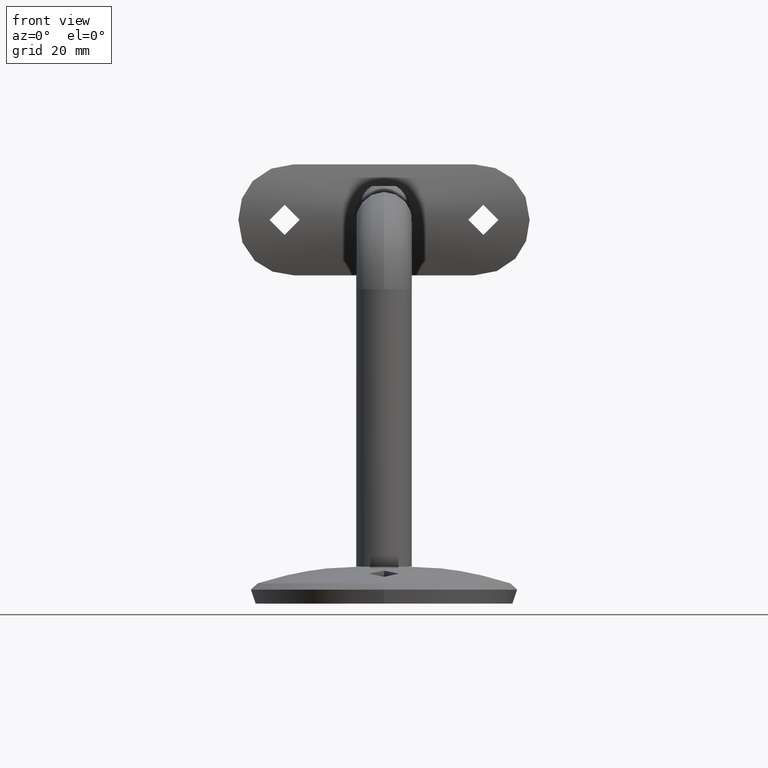
[diagram: clean part render]
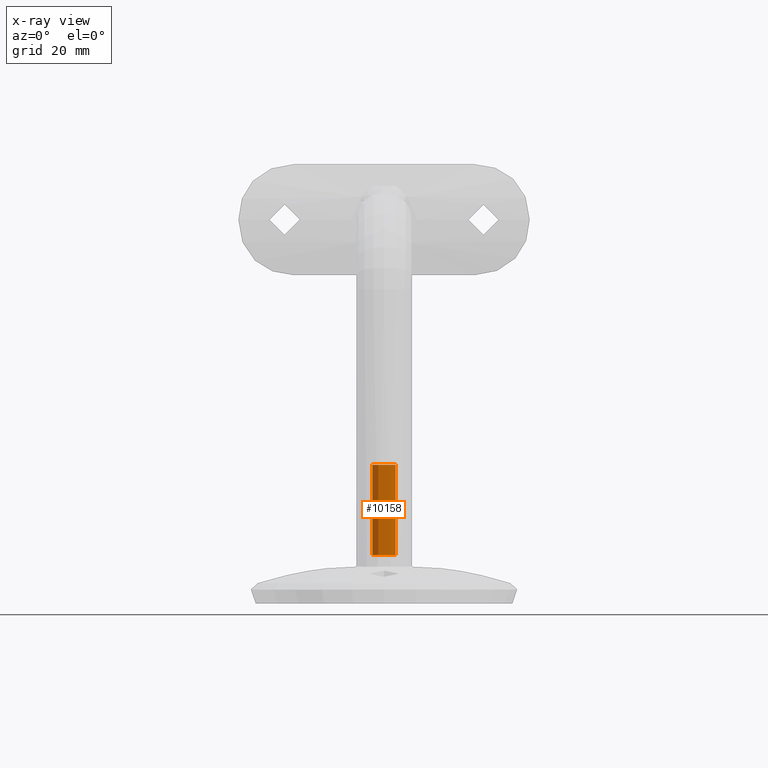
[diagram: x-ray — body ghosted, one internal face saturated and labeled with its STEP entity id]
A machine part, front view, then the same camera in x-ray: the body is ghosted and one INTERNAL B-rep face — a face not visible from any outside direction — is saturated and labeled: STEP entity #10158.
In plain terms, the highlighted cylindrical surface (edge-blend (fillet) strip) has radius 2.5 mm, axis along (0, 0, -1).
Its self-contained STEP definition (entity closure, byte-faithful):
#1497 = LINE ( 'NONE', #5765, #12288 ) ;
#1893 = ORIENTED_EDGE ( 'NONE', *, *, #12949, .F. ) ;
#2182 = DIRECTION ( 'NONE',  ( 1.000000000000000000, 0.000000000000000000, 0.000000000000000000 ) ) ;
#2385 = CARTESIAN_POINT ( 'NONE',  ( -2.499999999999985789, 3.061616997868342712E-16, -21.99999999999982592 ) ) ;
#4227 = AXIS2_PLACEMENT_3D ( 'NONE', #18294, #10986, #2182 ) ;
#4988 = CARTESIAN_POINT ( 'NONE',  ( -2.499999999999988010, 3.061616997868343698E-16, 0.000000000000000000 ) ) ;
#5087 = ORIENTED_EDGE ( 'NONE', *, *, #17022, .T. ) ;
#5425 = VERTEX_POINT ( 'NONE', #17000 ) ;
#5765 = CARTESIAN_POINT ( 'NONE',  ( 2.499999999999988010, 0.000000000000000000, 0.000000000000000000 ) ) ;
#6675 = EDGE_CURVE ( 'NONE', #5425, #12922, #14049, .T. ) ;
#6822 = CARTESIAN_POINT ( 'NONE',  ( 2.499999999999985789, 0.000000000000000000, -21.99999999999982592 ) ) ;
#7211 = AXIS2_PLACEMENT_3D ( 'NONE', #11949, #10390, #10522 ) ;
#8720 = DIRECTION ( 'NONE',  ( 0.000000000000000000, 0.000000000000000000, 1.000000000000000000 ) ) ;
#9624 = ORIENTED_EDGE ( 'NONE', *, *, #6675, .F. ) ;
#10158 = ADVANCED_FACE ( 'NONE', ( #16735 ), #13533, .F. ) ;
#10390 = DIRECTION ( 'NONE',  ( 0.000000000000000000, 0.000000000000000000, 1.000000000000000000 ) ) ;
#10522 = DIRECTION ( 'NONE',  ( 1.000000000000000000, 0.000000000000000000, 0.000000000000000000 ) ) ;
#10986 = DIRECTION ( 'NONE',  ( -0.000000000000000000, -0.000000000000000000, -1.000000000000000000 ) ) ;
#11711 = DIRECTION ( 'NONE',  ( 1.000000000000000000, 0.000000000000000000, 0.000000000000000000 ) ) ;
#11766 = CIRCLE ( 'NONE', #17062, 2.499999999999985789 ) ;
#11949 = CARTESIAN_POINT ( 'NONE',  ( 0.000000000000000000, 0.000000000000000000, 0.000000000000000000 ) ) ;
#12288 = VECTOR ( 'NONE', #18916, 1000.000000000000000 ) ;
#12853 = VERTEX_POINT ( 'NONE', #2385 ) ;
#12922 = VERTEX_POINT ( 'NONE', #13076 ) ;
#12949 = EDGE_CURVE ( 'NONE', #16002, #5425, #1497, .T. ) ;
#13076 = CARTESIAN_POINT ( 'NONE',  ( -2.499999999999988010, 4.592425496802530585E-16, -2.500000000000011102 ) ) ;
#13101 = VECTOR ( 'NONE', #16861, 1000.000000000000000 ) ;
#13512 = ORIENTED_EDGE ( 'NONE', *, *, #13531, .F. ) ;
#13531 = EDGE_CURVE ( 'NONE', #12853, #16002, #11766, .T. ) ;
#13533 = CYLINDRICAL_SURFACE ( 'NONE', #7211, 2.499999999999988010 ) ;
#14049 = CIRCLE ( 'NONE', #4227, 2.499999999999988010 ) ;
#14262 = LINE ( 'NONE', #4988, #13101 ) ;
#14313 = EDGE_LOOP ( 'NONE', ( #13512, #5087, #9624, #1893 ) ) ;
#14607 = CARTESIAN_POINT ( 'NONE',  ( 0.000000000000000000, 0.000000000000000000, -21.99999999999982592 ) ) ;
#16002 = VERTEX_POINT ( 'NONE', #6822 ) ;
#16735 = FACE_OUTER_BOUND ( 'NONE', #14313, .T. ) ;
#16861 = DIRECTION ( 'NONE',  ( 0.000000000000000000, 0.000000000000000000, 1.000000000000000000 ) ) ;
#17000 = CARTESIAN_POINT ( 'NONE',  ( 2.499999999999988010, 0.000000000000000000, -2.500000000000011102 ) ) ;
#17022 = EDGE_CURVE ( 'NONE', #12853, #12922, #14262, .T. ) ;
#17062 = AXIS2_PLACEMENT_3D ( 'NONE', #14607, #8720, #11711 ) ;
#18294 = CARTESIAN_POINT ( 'NONE',  ( 0.000000000000000000, 0.000000000000000000, -2.500000000000011102 ) ) ;
#18916 = DIRECTION ( 'NONE',  ( 0.000000000000000000, 0.000000000000000000, 1.000000000000000000 ) ) ;